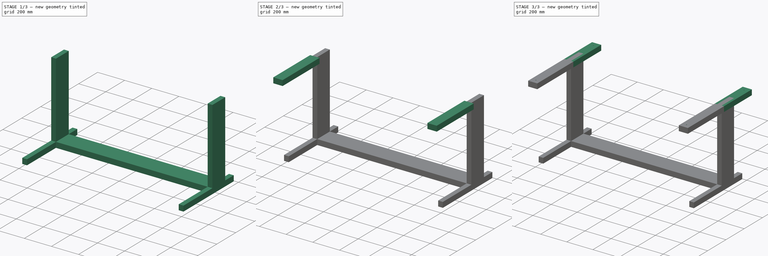
[diagram: build sequence overview — one tinted view per stage of 3, left to right]
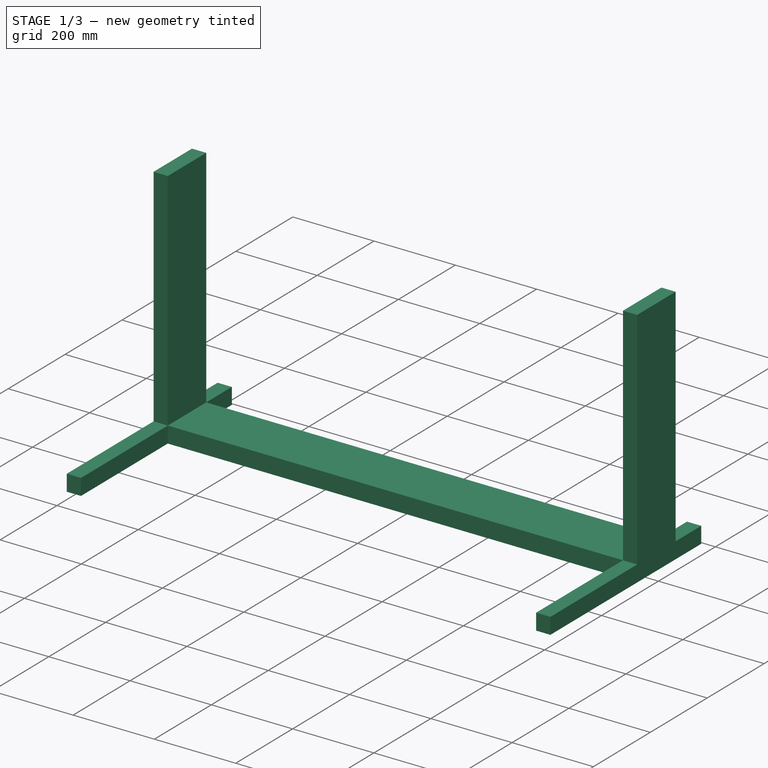
[diagram: stage 1 of 3 — iso view after this stage's code; geometry added in this stage tinted green]
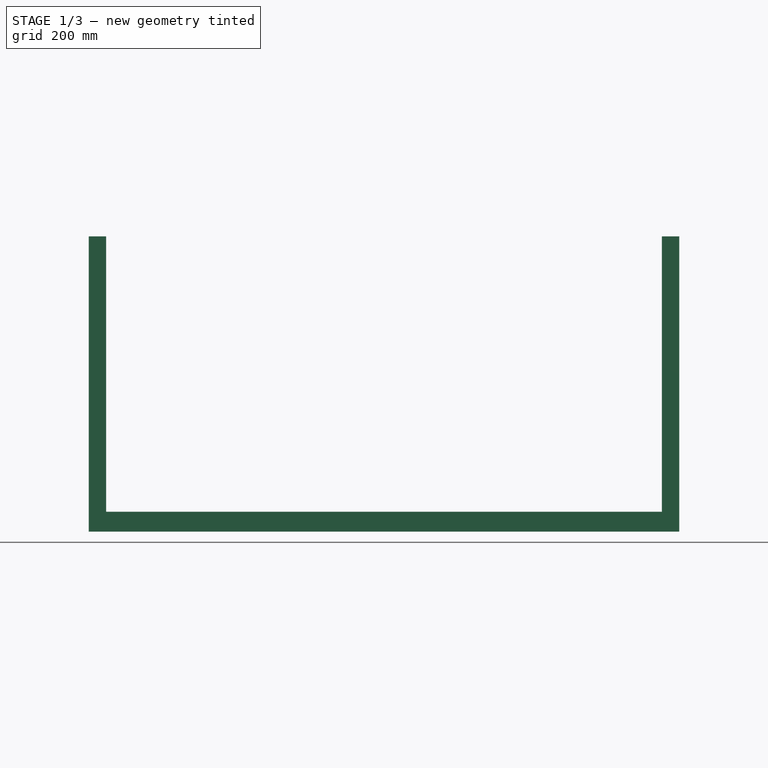
[diagram: stage 1 of 3 — front view after this stage's code; geometry added in this stage tinted green]
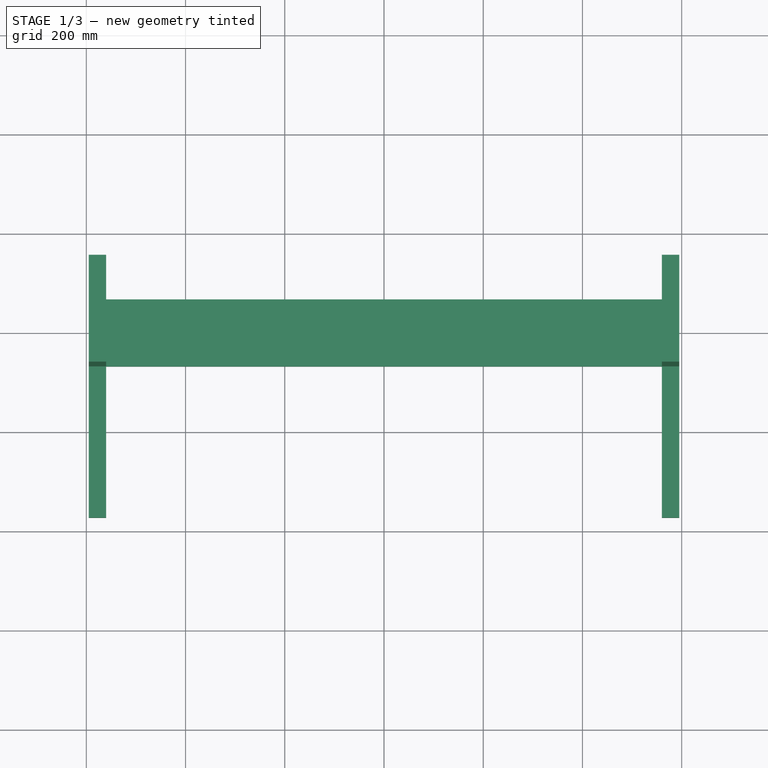
[diagram: stage 1 of 3 — top view after this stage's code; geometry added in this stage tinted green]
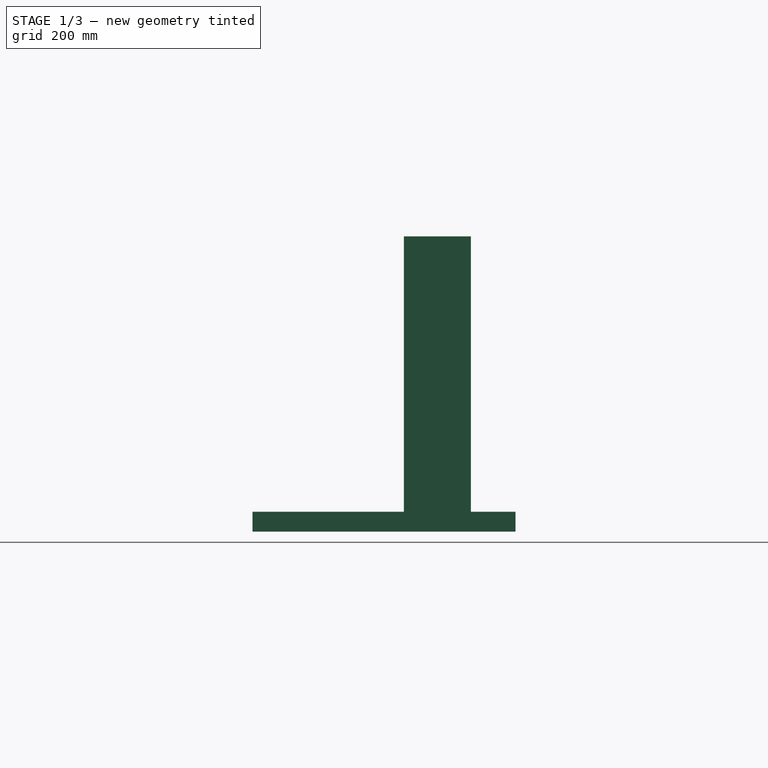
[diagram: stage 1 of 3 — right view after this stage's code; geometry added in this stage tinted green]
FCSTD DOCUMENT  (FreeCAD 0.20R29410 (Git))
Label: base
License: All rights reserved
LicenseURL: http://en.wikipedia.org/wiki/All_rights_reserved
objects: Sketcher::SketchObject×5, PartDesign::Pad×4, PartDesign::Pocket×1, PartDesign::Body×1
note: 16 computed .brp shape members not serialized (recipe doc carries the construction recipe); baked Part::Feature solids carry a one-line shape summary decoded from their .brp

FEATURE [Sketcher::SketchObject] Sketch
  FullyConstrained = true
  MapMode = 5
  Support = -> [XY_Plane]
  sketch-geometry (12):
    g0: LineSegment StartX=-560 StartY=67.5 StartZ=0 EndX=560 EndY=67.5 EndZ=0
    g1: LineSegment StartX=560 StartY=67.5 StartZ=0 EndX=560 EndY=157.5 EndZ=0
    g2: LineSegment StartX=560 StartY=157.5 StartZ=0 EndX=595 EndY=157.5 EndZ=0
    g3: LineSegment StartX=595 StartY=157.5 StartZ=0 EndX=595 EndY=-372.5 EndZ=0
    g4: LineSegment StartX=595 StartY=-372.5 StartZ=0 EndX=560 EndY=-372.5 EndZ=0
    g5: LineSegment StartX=560 StartY=-372.5 StartZ=0 EndX=560 EndY=-67.5 EndZ=0
    g6: LineSegment StartX=560 StartY=-67.5 StartZ=0 EndX=-560 EndY=-67.5 EndZ=0
    g7: LineSegment StartX=-560 StartY=-67.5 StartZ=0 EndX=-560 EndY=-372.5 EndZ=0
    g8: LineSegment StartX=-560 StartY=-372.5 StartZ=0 EndX=-595 EndY=-372.5 EndZ=0
    g9: LineSegment StartX=-595 StartY=-372.5 StartZ=0 EndX=-595 EndY=157.5 EndZ=0
    g10: LineSegment StartX=-595 StartY=157.5 StartZ=0 EndX=-560 EndY=157.5 EndZ=0
    g11: LineSegment StartX=-560 StartY=157.5 StartZ=0 EndX=-560 EndY=67.5 EndZ=0
  constraints (35):
    c: Horizontal(g0)
    c: Coincident(g0,g1)
    c: Vertical(g1)
    c: Coincident(g1,g2)
    c: Horizontal(g2)
    c: Coincident(g2,g3)
    c: Vertical(g3)
    c: Coincident(g3,g4)
    c: Horizontal(g4)
    c: Coincident(g4,g5)
    c: Vertical(g5)
    c: Coincident(g5,g6)
    c: Horizontal(g6)
    c: Coincident(g6,g7)
    c: Vertical(g7)
    c: Coincident(g7,g8)
    c: Coincident(g8,g9)
    c: Vertical(g9)
    c: Coincident(g9,g10)
    c: Coincident(g10,g11)
    c: Coincident(g11,g0)
    c: Vertical(g11)
    c: DistanceY(g9,g9) = 530
    c: Horizontal(g9,g10)
    c: Horizontal(g1,g9)
    c: Horizontal(g7,g8)
    c: Horizontal(g4,g8)
    c: DistanceX(g9,g2) = 1190
    c: Vertical(g10,g6)
    c: Vertical(g1,g5)
    c: DistanceX(g10,g10) = 35
    c: DistanceX(g2,g2) = 35
    c: DistanceY(g6,g0) = 135
    c: DistanceY(g0,g10) = 90
    c: Symmetric(g0,g5,g-1)
FEATURE [PartDesign::Pad] Pad
  Direction = (0,0,1)
  Length = 40
  Length2 = 10
  Profile = -> Sketch
  ReferenceAxis = -> Sketch [N_Axis]
  Type = 0
FEATURE [Sketcher::SketchObject] Sketch001
  ExternalGeometry = -> [Pad]
  FullyConstrained = true
  MapMode = 5
  Placement = pos=(0,0,40) rot=(0,0,1;0rad)
  Support = -> [Pad]
  sketch-geometry (8):
    g0: LineSegment StartX=-595 StartY=67.5 StartZ=0 EndX=-560 EndY=67.5 EndZ=0
    g1: LineSegment StartX=-560 StartY=67.5 StartZ=0 EndX=-560 EndY=-67.5 EndZ=0
    g2: LineSegment StartX=-560 StartY=-67.5 StartZ=0 EndX=-595 EndY=-67.5 EndZ=0
    g3: LineSegment StartX=-595 StartY=-67.5 StartZ=0 EndX=-595 EndY=67.5 EndZ=0
    g4: LineSegment StartX=595 StartY=67.5 StartZ=0 EndX=560 EndY=67.5 EndZ=0
    g5: LineSegment StartX=560 StartY=67.5 StartZ=0 EndX=560 EndY=-67.5 EndZ=0
    g6: LineSegment StartX=560 StartY=-67.5 StartZ=0 EndX=595 EndY=-67.5 EndZ=0
    g7: LineSegment StartX=595 StartY=-67.5 StartZ=0 EndX=595 EndY=67.5 EndZ=0
  constraints (22):
    c: Coincident(g0,g1)
    c: Coincident(g1,g2)
    c: Coincident(g2,g3)
    c: Coincident(g3,g0)
    c: Horizontal(g0)
    c: Horizontal(g2)
    c: Vertical(g1)
    c: Vertical(g3)
    c: Coincident(g1,g-6)
    c: PointOnObject(g2,g-3)
    c: Coincident(g4,g5)
    c: Coincident(g5,g6)
    c: Coincident(g6,g7)
    c: Coincident(g7,g4)
    c: Horizontal(g4)
    c: Horizontal(g6)
    c: Vertical(g5)
    c: Vertical(g7)
    c: PointOnObject(g0,g-4)
    c: Coincident(g5,g-10)
    c: PointOnObject(g6,g-13)
    c: PointOnObject(g4,g-4)
FEATURE [PartDesign::Pad] Pad001
  BaseFeature = -> Pad
  Direction = (0,0,1)
  Length = 555
  Length2 = 10
  Profile = -> Sketch001
  ReferenceAxis = -> Sketch001 [N_Axis]
  Type = 0
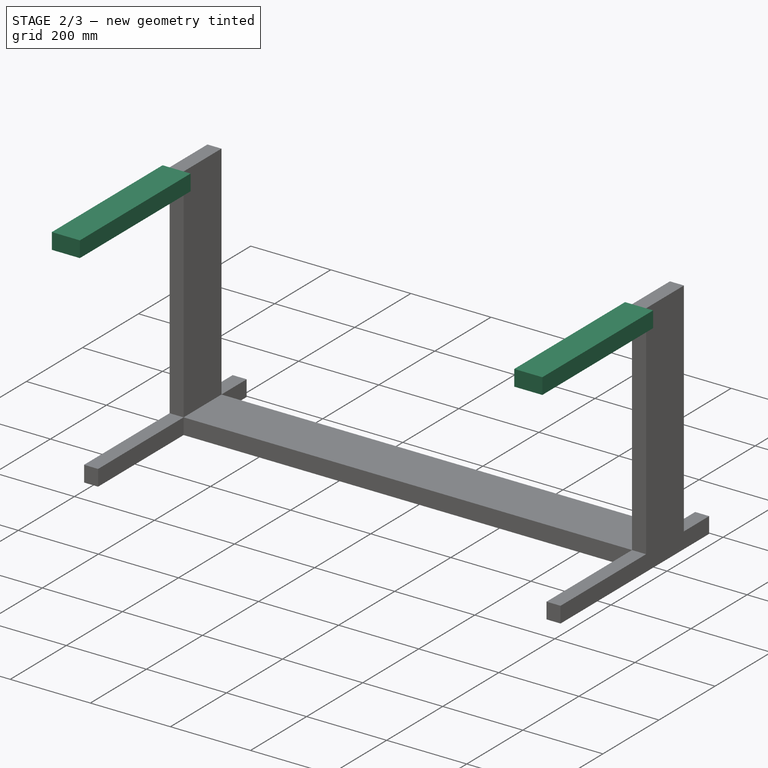
[diagram: stage 2 of 3 — iso view after this stage's code; geometry added in this stage tinted green]
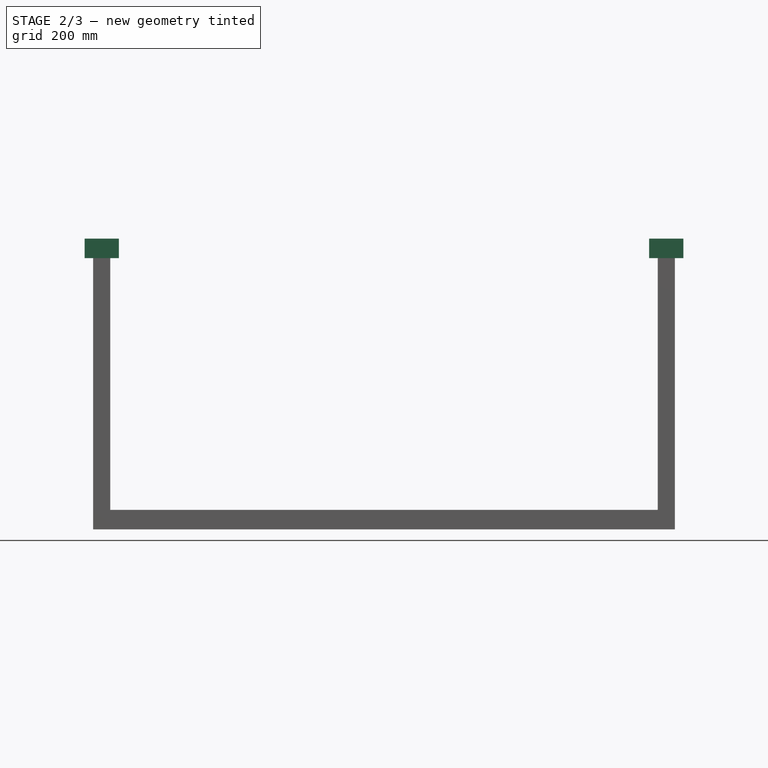
[diagram: stage 2 of 3 — front view after this stage's code; geometry added in this stage tinted green]
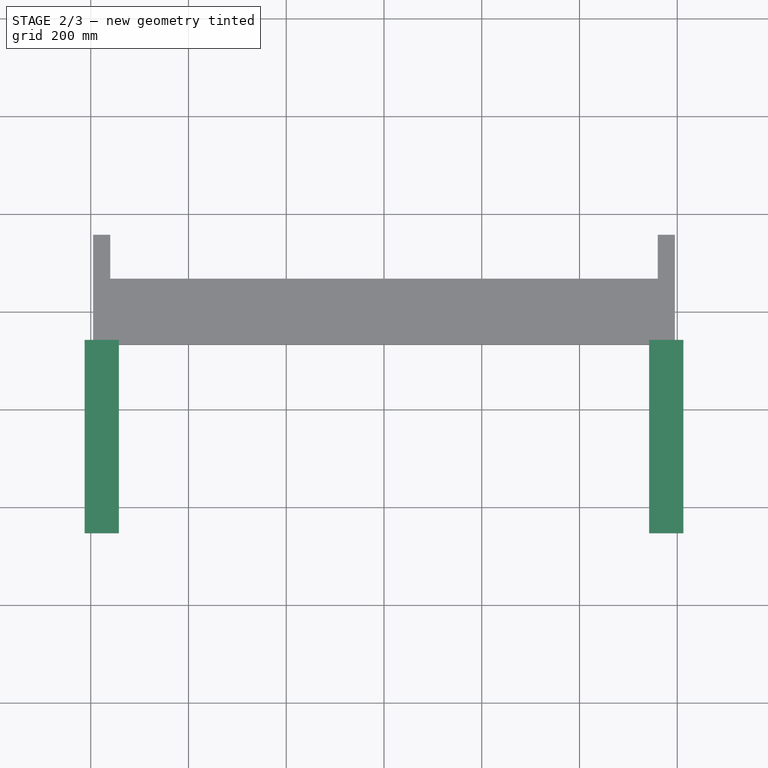
[diagram: stage 2 of 3 — top view after this stage's code; geometry added in this stage tinted green]
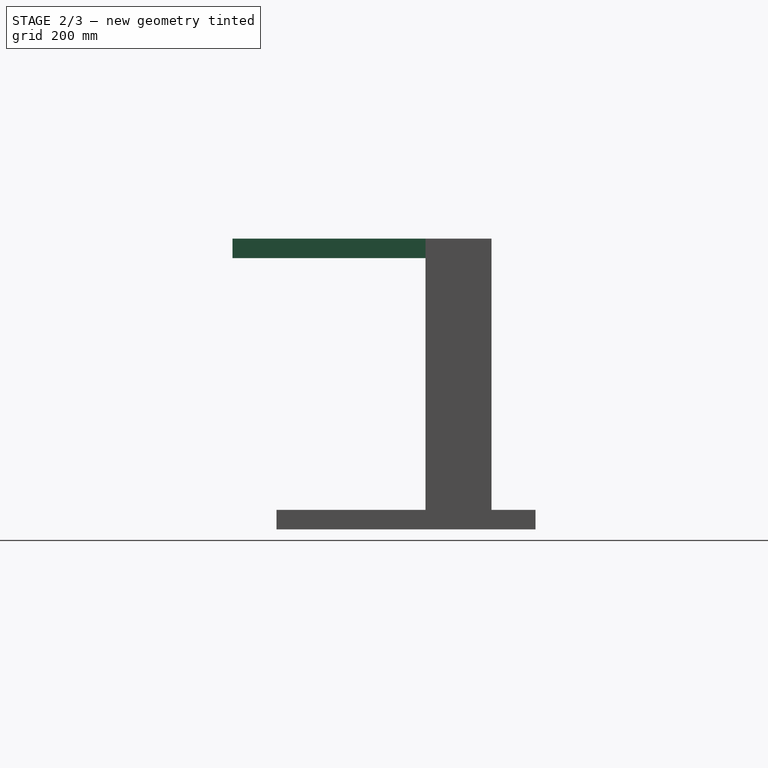
[diagram: stage 2 of 3 — right view after this stage's code; geometry added in this stage tinted green]
FEATURE [Sketcher::SketchObject] Sketch002
  ExternalGeometry = -> [Pad001]
  FullyConstrained = true
  MapMode = 5
  Placement = pos=(0,-67.5,0) rot=(1,0,0;1.5708rad)
  Support = -> [Pad001]
  sketch-geometry (10):
    g0: LineSegment StartX=-612.5 StartY=595 StartZ=0 EndX=-542.5 EndY=595 EndZ=0
    g1: LineSegment StartX=-542.5 StartY=595 StartZ=0 EndX=-542.5 EndY=555 EndZ=0
    g2: LineSegment StartX=-542.5 StartY=555 StartZ=0 EndX=-612.5 EndY=555 EndZ=0
    g3: LineSegment StartX=-612.5 StartY=555 StartZ=0 EndX=-612.5 EndY=595 EndZ=0
    g4: GeomPoint X=-577.5 Y=595 Z=0
    g5: GeomPoint X=577.5 Y=595 Z=0
    g6: LineSegment StartX=542.5 StartY=595 StartZ=0 EndX=612.5 EndY=595 EndZ=0
    g7: LineSegment StartX=612.5 StartY=595 StartZ=0 EndX=612.5 EndY=555 EndZ=0
    g8: LineSegment StartX=612.5 StartY=555 StartZ=0 EndX=542.5 EndY=555 EndZ=0
    g9: LineSegment StartX=542.5 StartY=555 StartZ=0 EndX=542.5 EndY=595 EndZ=0
  constraints (24):
    c: Coincident(g0,g1)
    c: Coincident(g1,g2)
    c: Coincident(g2,g3)
    c: Coincident(g3,g0)
    c: Horizontal(g0)
    c: Horizontal(g2)
    c: Vertical(g1)
    c: Vertical(g3)
    c: Symmetric(g-8,g-8,g4)
    c: Symmetric(g0,g0,g4)
    c: DistanceX(g0,g0) = 70
    c: DistanceY(g2,g0) = 40
    c: Symmetric(g-6,g-7,g5)
    c: Coincident(g6,g7)
    c: Coincident(g7,g8)
    c: Coincident(g8,g9)
    c: Coincident(g9,g6)
    c: Horizontal(g6)
    c: Horizontal(g8)
    c: Vertical(g7)
    c: Vertical(g9)
    c: Symmetric(g6,g6,g5)
    c: Equal(g8,g2)
    c: Equal(g1,g9)
FEATURE [PartDesign::Pad] Pad002
  BaseFeature = -> Pad001
  Direction = (0,-1,2e-16)
  Length = 395
  Length2 = 10
  Profile = -> Sketch002
  ReferenceAxis = -> Sketch002 [N_Axis]
  Type = 0
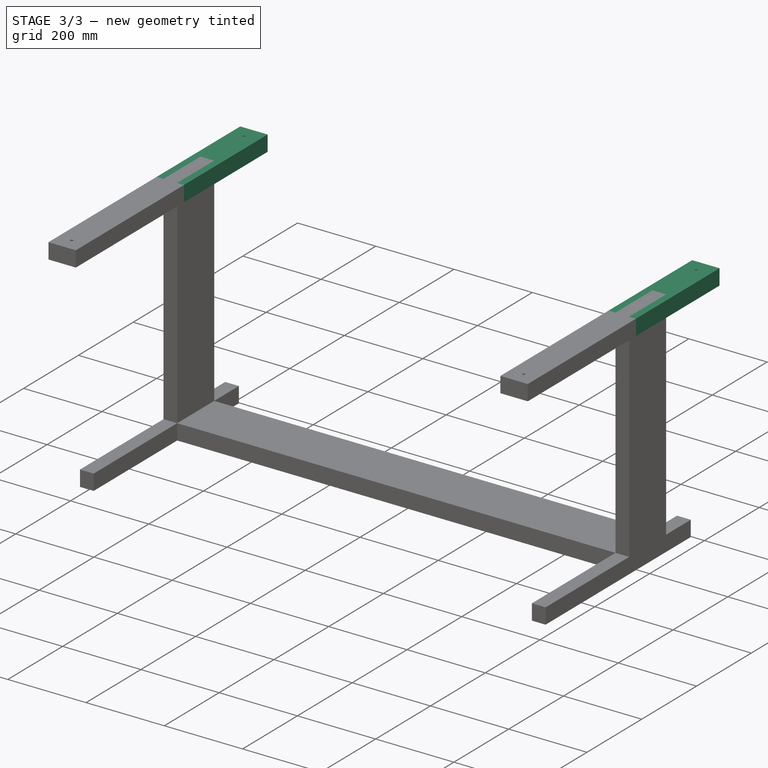
[diagram: stage 3 of 3 — iso view after this stage's code; geometry added in this stage tinted green]
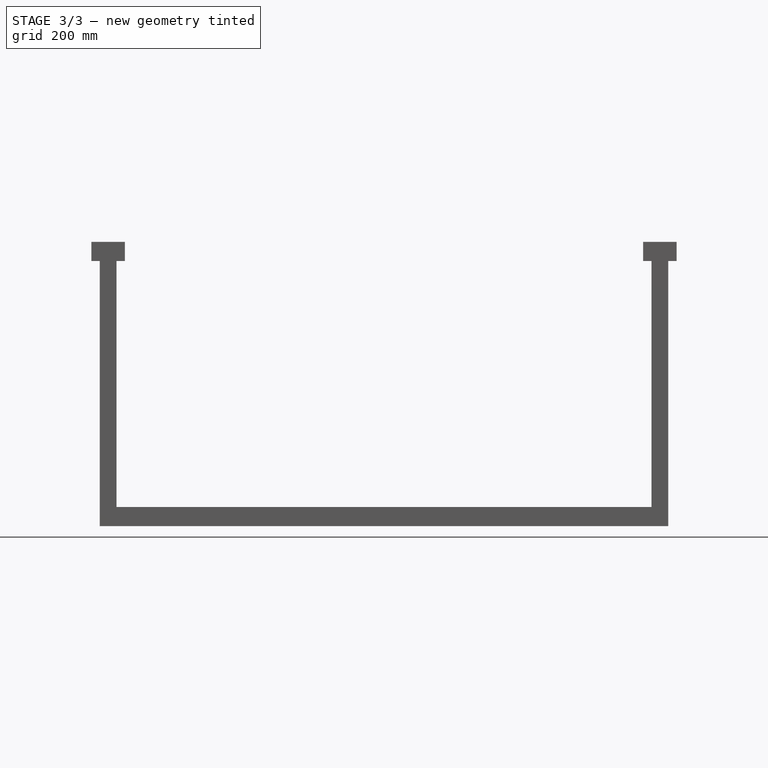
[diagram: stage 3 of 3 — front view after this stage's code; geometry added in this stage tinted green]
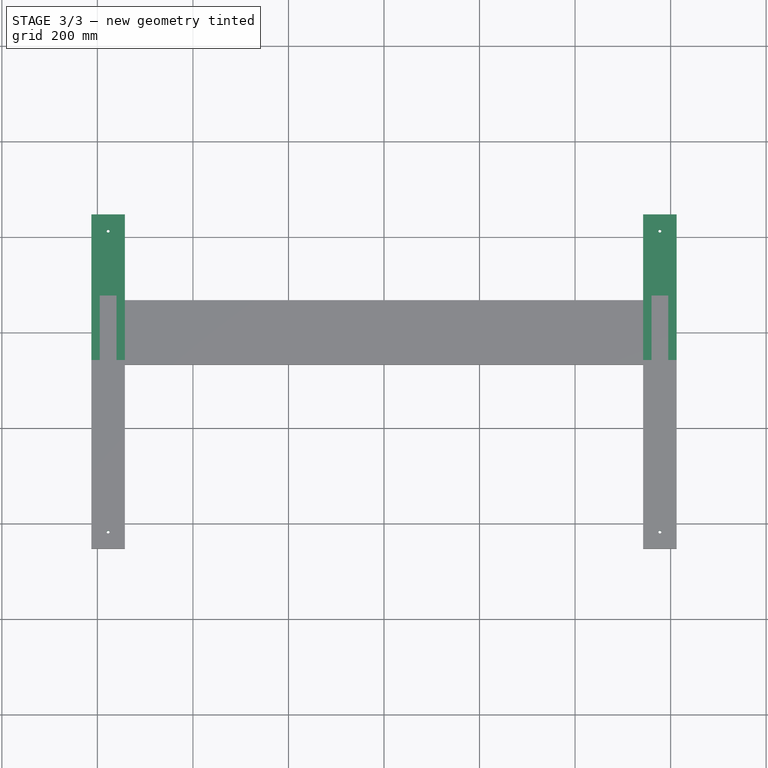
[diagram: stage 3 of 3 — top view after this stage's code; geometry added in this stage tinted green]
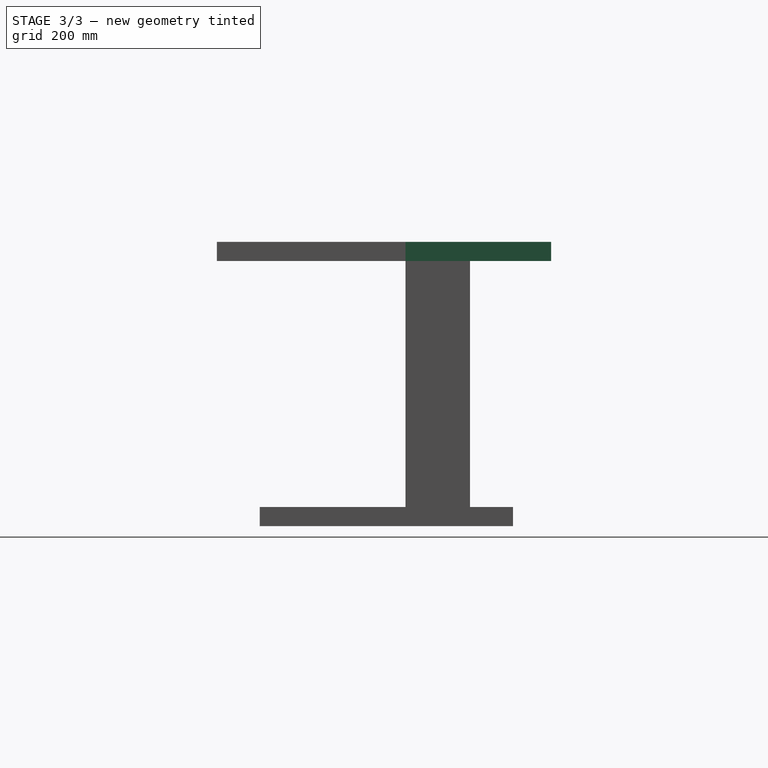
[diagram: stage 3 of 3 — right view after this stage's code; geometry added in this stage tinted green]
FEATURE [Sketcher::SketchObject] Sketch003
  ExternalGeometry = -> [Pad002]
  FullyConstrained = true
  MapMode = 5
  Placement = pos=(0,-67.5,0) rot=(0,0.707107,0.707107;3.14159rad)
  Support = -> [Pad002]
  sketch-geometry (8):
    g0: LineSegment StartX=542.5 StartY=595 StartZ=0 EndX=612.5 EndY=595 EndZ=0
    g1: LineSegment StartX=612.5 StartY=595 StartZ=0 EndX=612.5 EndY=555 EndZ=0
    g2: LineSegment StartX=612.5 StartY=555 StartZ=0 EndX=542.5 EndY=555 EndZ=0
    g3: LineSegment StartX=542.5 StartY=555 StartZ=0 EndX=542.5 EndY=595 EndZ=0
    g4: LineSegment StartX=-612.5 StartY=595 StartZ=0 EndX=-542.5 EndY=595 EndZ=0
    g5: LineSegment StartX=-542.5 StartY=595 StartZ=0 EndX=-542.5 EndY=555 EndZ=0
    g6: LineSegment StartX=-542.5 StartY=555 StartZ=0 EndX=-612.5 EndY=555 EndZ=0
    g7: LineSegment StartX=-612.5 StartY=555 StartZ=0 EndX=-612.5 EndY=595 EndZ=0
  constraints (20):
    c: Coincident(g0,g1)
    c: Coincident(g1,g2)
    c: Coincident(g2,g3)
    c: Coincident(g3,g0)
    c: Horizontal(g0)
    c: Horizontal(g2)
    c: Vertical(g1)
    c: Vertical(g3)
    c: Coincident(g0,g-6)
    c: Coincident(g1,g-8)
    c: Coincident(g4,g5)
    c: Coincident(g5,g6)
    c: Coincident(g6,g7)
    c: Coincident(g7,g4)
    c: Horizontal(g4)
    c: Horizontal(g6)
    c: Vertical(g5)
    c: Vertical(g7)
    c: Coincident(g4,g-12)
    c: Coincident(g5,g-16)
FEATURE [PartDesign::Pad] Pad003
  BaseFeature = -> Pad002
  Direction = (0,1,-2e-16)
  Length = 305
  Length2 = 10
  Profile = -> Sketch003
  ReferenceAxis = -> Sketch003 [N_Axis]
  Type = 0
FEATURE [Sketcher::SketchObject] Sketch004
  ExternalGeometry = -> [Pad003]
  FullyConstrained = true
  MapMode = 5
  Placement = pos=(0,1.321e-13,595) rot=(0,0,1;0rad)
  Support = -> [Pad003]
  sketch-geometry (20):
    g0: LineSegment StartX=-612.5 StartY=-462.5 StartZ=0 EndX=-542.5 EndY=-462.5 EndZ=0
    g1: LineSegment StartX=-542.5 StartY=-462.5 StartZ=0 EndX=-542.5 EndY=-392.5 EndZ=0
    g2: LineSegment StartX=-542.5 StartY=-392.5 StartZ=0 EndX=-612.5 EndY=-392.5 EndZ=0
    g3: LineSegment StartX=-612.5 StartY=-392.5 StartZ=0 EndX=-612.5 EndY=-462.5 EndZ=0
    g4: Circle CenterX=-577.5 CenterY=-427.5 CenterZ=0 NormalX=0 NormalY=0 NormalZ=1 AngleXU=0 Radius=3.125
    g5: LineSegment StartX=542.5 StartY=-392.5 StartZ=0 EndX=612.5 EndY=-392.5 EndZ=0
    g6: LineSegment StartX=612.5 StartY=-392.5 StartZ=0 EndX=612.5 EndY=-462.5 EndZ=0
    g7: LineSegment StartX=612.5 StartY=-462.5 StartZ=0 EndX=542.5 EndY=-462.5 EndZ=0
    g8: LineSegment StartX=542.5 StartY=-462.5 StartZ=0 EndX=542.5 EndY=-392.5 EndZ=0
    g9: Circle CenterX=577.5 CenterY=-427.5 CenterZ=0 NormalX=0 NormalY=0 NormalZ=1 AngleXU=0 Radius=3.125
    g10: LineSegment StartX=-612.5 StartY=237.5 StartZ=0 EndX=-542.5 EndY=237.5 EndZ=0
    g11: LineSegment StartX=-542.5 StartY=237.5 StartZ=0 EndX=-542.5 EndY=167.5 EndZ=0
    g12: LineSegment StartX=-542.5 StartY=167.5 StartZ=0 EndX=-612.5 EndY=167.5 EndZ=0
    g13: LineSegment StartX=-612.5 StartY=167.5 StartZ=0 EndX=-612.5 EndY=237.5 EndZ=0
    g14: Circle CenterX=-577.5 CenterY=202.5 CenterZ=0 NormalX=0 NormalY=0 NormalZ=1 AngleXU=0 Radius=3.125
    g15: LineSegment StartX=542.5 StartY=237.5 StartZ=0 EndX=612.5 EndY=237.5 EndZ=0
    g16: LineSegment StartX=612.5 StartY=237.5 StartZ=0 EndX=612.5 EndY=167.5 EndZ=0
    g17: LineSegment StartX=612.5 StartY=167.5 StartZ=0 EndX=542.5 EndY=167.5 EndZ=0
    g18: LineSegment StartX=542.5 StartY=167.5 StartZ=0 EndX=542.5 EndY=237.5 EndZ=0
    g19: Circle CenterX=577.5 CenterY=202.5 CenterZ=0 NormalX=0 NormalY=0 NormalZ=1 AngleXU=0 Radius=3.125
  constraints (55):
    c: Coincident(g0,g1)
    c: Coincident(g1,g2)
    c: Coincident(g2,g3)
    c: Coincident(g3,g0)
    c: Horizontal(g0)
    c: Horizontal(g2)
    c: Vertical(g1)
    c: Vertical(g3)
    c: Coincident(g0,g-4)
    c: PointOnObject(g1,g-5)
    c: Symmetric(g2,g0,g4)
    c: Diameter(g4) = 6.25
    c: Equal(g0,g3)
    c: Coincident(g5,g6)
    c: Coincident(g6,g7)
    c: Coincident(g7,g8)
    c: Coincident(g8,g5)
    c: Horizontal(g5)
    c: Horizontal(g7)
    c: Vertical(g6)
    c: Vertical(g8)
    c: Symmetric(g5,g6,g9)
    c: Diameter(g9) = 6.25
    c: Coincident(g7,g-10)
    c: PointOnObject(g5,g-11)
    c: Equal(g7,g8)
    c: Coincident(g10,g11)
    c: Coincident(g11,g12)
    c: Coincident(g12,g13)
    c: Coincident(g13,g10)
    c: Horizontal(g10)
    c: Horizontal(g12)
    c: Vertical(g11)
    c: Vertical(g13)
    c: Coincident(g10,g-7)
    c: PointOnObject(g11,g-8)
    c: Equal(g11,g10)
    c: Symmetric(g10,g11,g14)
    c: Diameter(g14) = 6.25
    c: Coincident(g15,g16)
    c: Coincident(g16,g17)
    c: Coincident(g17,g18)
    c: Coincident(g18,g15)
    c: Horizontal(g15)
    c: Horizontal(g17)
    c: Vertical(g16)
    c: Vertical(g18)
    c: Coincident(g15,g-14)
    c: PointOnObject(g16,g-12)
    c: Symmetric(g15,g16,g19)
    c: Diameter(g19) = 6.25
    c: Equal(g15,g18)
    c: DistanceY(g4,g14) = 630
    c: DistanceY(g0,g10) = 700
    c: DistanceY(g0,g-6) = 395
FEATURE [PartDesign::Pocket] Pocket
  BaseFeature = -> Pad003
  Direction = (0,-2e-16,-1)
  Length = 5
  Length2 = 5
  Profile = -> Sketch004
  ReferenceAxis = -> Sketch004 [N_Axis]
  Type = 1
FEATURE [PartDesign::Body] Body
  Group = -> [Sketch,Pad,Sketch001,Pad001,Sketch002,Pad002,Sketch003,Pad003,Sketch004,Pocket]
  Origin = -> Origin
  Tip = -> Pocket
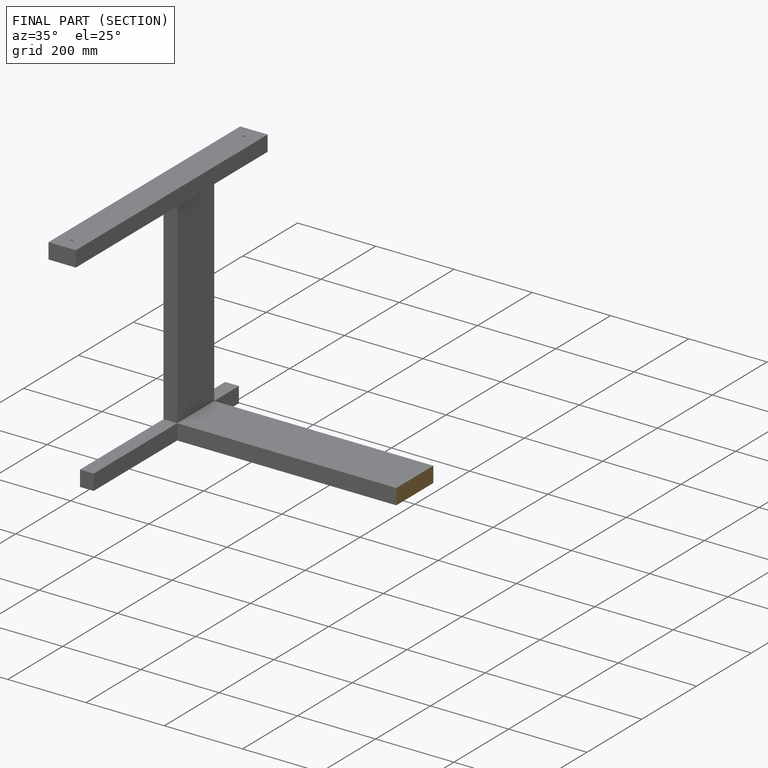
[diagram: finished part — half-section view (interior)]
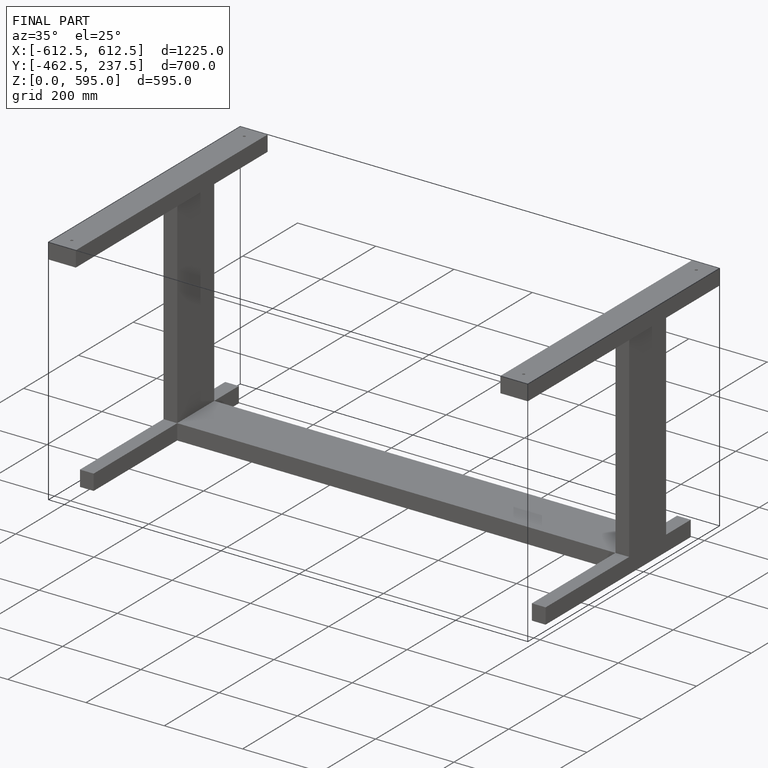
[diagram: finished part — iso view with bounding-box wireframe]
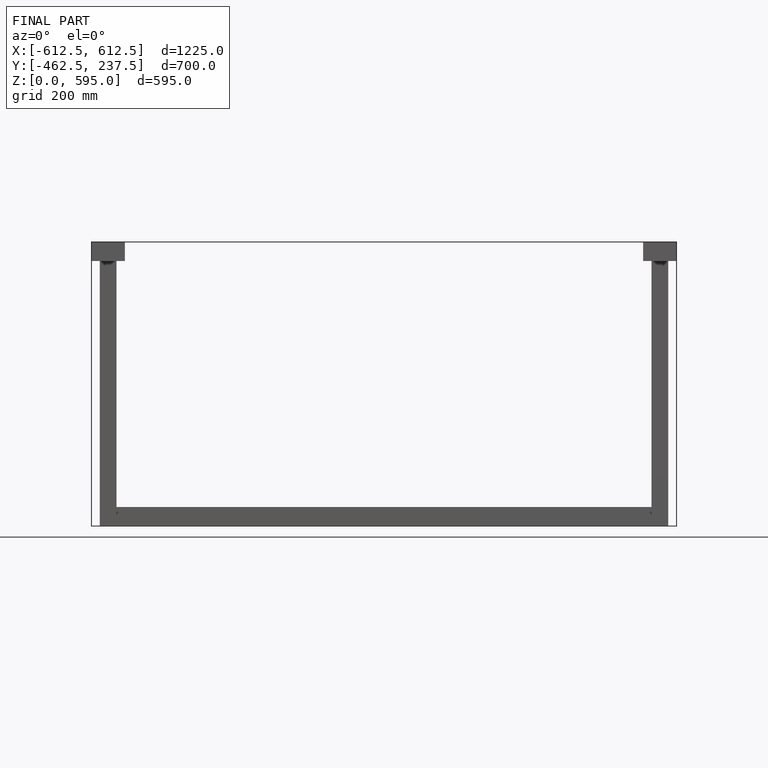
[diagram: finished part — front view with bounding-box wireframe]
